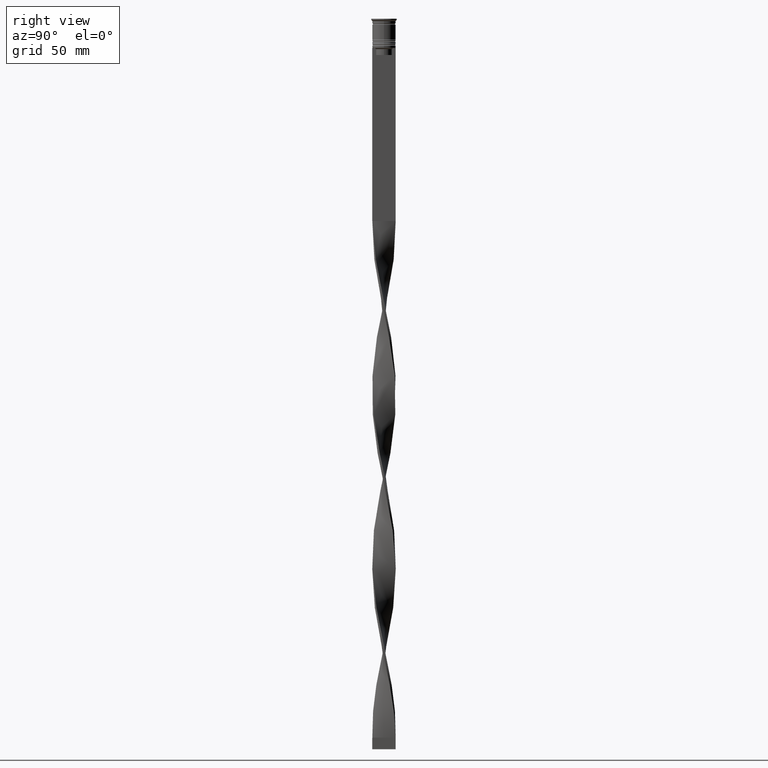
[diagram: clean part render]
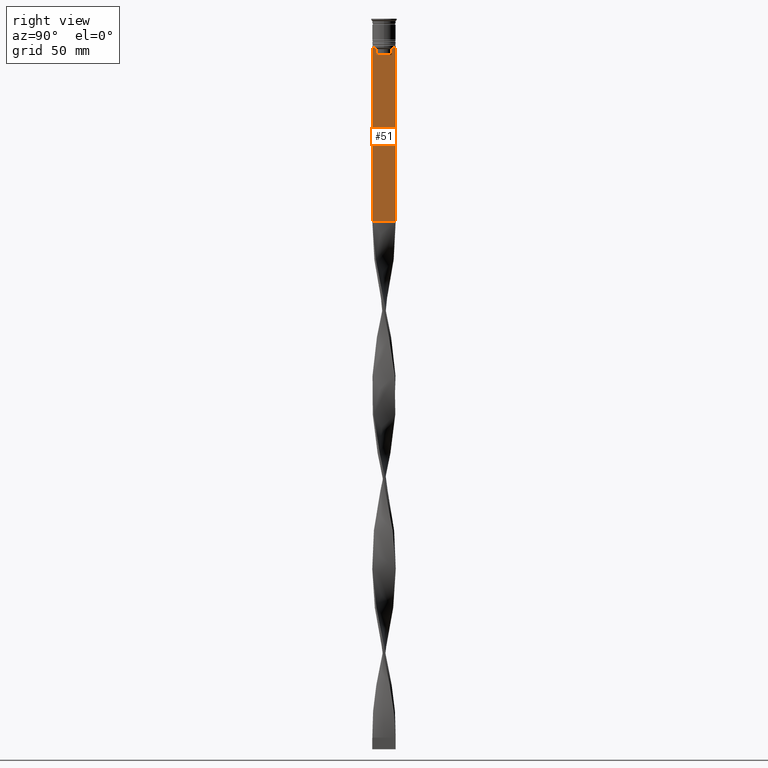
[diagram: same view with one face highlighted and labeled with its STEP entity id]
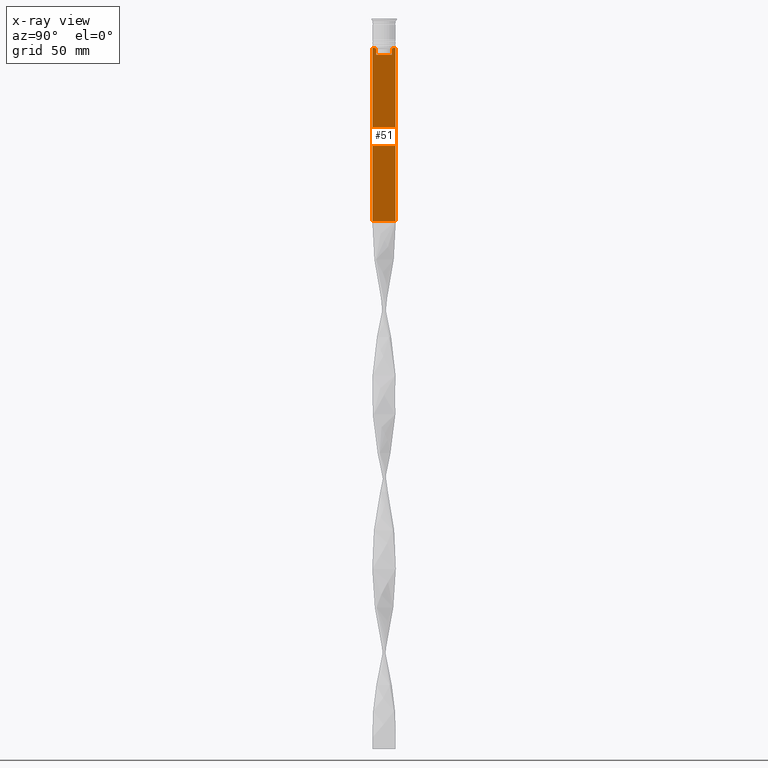
[diagram: x-ray of the same camera — body ghosted, the highlighted face saturated]
A machine part, right view. The second image highlights one B-rep face of the part: STEP entity #51.
The next image is the same camera in x-ray: the body ghosted, the highlighted face saturated — about 0% of this face is hidden behind the body in this view.
In plain terms, the highlighted planar face has unit normal (-1, 0, 0).
Its self-contained STEP definition (entity closure, byte-faithful):
#48 = LINE ( 'NONE', #146, #550 ) ;
#51 = ADVANCED_FACE ( 'NONE', ( #2214 ), #3476, .F. ) ;
#85 = VECTOR ( 'NONE', #3230, 1000.000000000000000 ) ;
#107 = VERTEX_POINT ( 'NONE', #1964 ) ;
#112 = CARTESIAN_POINT ( 'NONE',  ( 0.5000000000000000000, 4.874423042781575788, -12.50000000000000000 ) ) ;
#124 = EDGE_CURVE ( 'NONE', #2200, #4015, #2900, .T. ) ;
#146 = CARTESIAN_POINT ( 'NONE',  ( 0.5000000000000000000, -4.999999999999999112, -12.50000000000000000 ) ) ;
#335 = DIRECTION ( 'NONE',  ( 0.000000000000000000, 1.000000000000000000, 0.000000000000000000 ) ) ;
#349 = CARTESIAN_POINT ( 'NONE',  ( 0.5000000000000000000, 3.363034344160045208, 0.000000000000000000 ) ) ;
#439 = CARTESIAN_POINT ( 'NONE',  ( 0.5000000000000000000, -4.999999999999999112, -12.50000000000000000 ) ) ;
#448 = CARTESIAN_POINT ( 'NONE',  ( 0.5000000000000000000, -4.999999999999999112, -86.50000000000000000 ) ) ;
#455 = LINE ( 'NONE', #1744, #572 ) ;
#464 = ORIENTED_EDGE ( 'NONE', *, *, #1367, .T. ) ;
#538 = CARTESIAN_POINT ( 'NONE',  ( 0.5000000000000000000, 3.399999999999998135, -15.50000000000000000 ) ) ;
#550 = VECTOR ( 'NONE', #2150, 1000.000000000000000 ) ;
#572 = VECTOR ( 'NONE', #2393, 1000.000000000000000 ) ;
#645 = CARTESIAN_POINT ( 'NONE',  ( 0.5000000000000000000, -4.999999999999999112, -2.450124378879110054 ) ) ;
#725 = CARTESIAN_POINT ( 'NONE',  ( 0.5000000000000000000, -4.874423042781575788, -12.50000000000000000 ) ) ;
#765 = VECTOR ( 'NONE', #2928, 1000.000000000000000 ) ;
#889 = B_SPLINE_CURVE_WITH_KNOTS ( 'NONE', 3,
 ( #3931, #3868, #1994, #3284 ),
 .UNSPECIFIED., .F., .F.,
 ( 4, 4 ),
 ( 0.006644825462451552783, 0.007355321358912435097 ),
 .UNSPECIFIED. ) ;
#1022 = CARTESIAN_POINT ( 'NONE',  ( 0.5000000000000000000, -3.363034344160045652, -15.50000000000000000 ) ) ;
#1026 = ORIENTED_EDGE ( 'NONE', *, *, #1677, .T. ) ;
#1051 = EDGE_CURVE ( 'NONE', #3587, #4015, #2599, .T. ) ;
#1112 = DIRECTION ( 'NONE',  ( 0.000000000000000000, 0.000000000000000000, -1.000000000000000000 ) ) ;
#1117 = EDGE_CURVE ( 'NONE', #107, #3587, #3511, .T. ) ;
#1271 = CARTESIAN_POINT ( 'NONE',  ( 0.5000000000000000000, -4.999999999999999112, -12.50000000000000000 ) ) ;
#1321 = LINE ( 'NONE', #349, #765 ) ;
#1367 = EDGE_CURVE ( 'NONE', #3833, #3082, #3095, .T. ) ;
#1430 = LINE ( 'NONE', #439, #3113 ) ;
#1474 = EDGE_CURVE ( 'NONE', #2058, #1970, #889, .T. ) ;
#1536 = EDGE_CURVE ( 'NONE', #2200, #1544, #3616, .T. ) ;
#1544 = VERTEX_POINT ( 'NONE', #112 ) ;
#1577 = DIRECTION ( 'NONE',  ( 0.000000000000000000, 0.000000000000000000, 1.000000000000000000 ) ) ;
#1578 = AXIS2_PLACEMENT_3D ( 'NONE', #645, #1863, #1577 ) ;
#1622 = CARTESIAN_POINT ( 'NONE',  ( 0.5000000000000000000, -3.699658232838647365, -12.66676999593996555 ) ) ;
#1636 = CARTESIAN_POINT ( 'NONE',  ( 0.5000000000000000000, 3.363034344160045208, -13.00000000000000178 ) ) ;
#1677 = EDGE_CURVE ( 'NONE', #3082, #3151, #48, .T. ) ;
#1744 = CARTESIAN_POINT ( 'NONE',  ( 0.5000000000000000000, -3.363034344160045208, 0.000000000000000000 ) ) ;
#1799 = CARTESIAN_POINT ( 'NONE',  ( 0.5000000000000000000, -3.867815921162742754, -12.50000000000000000 ) ) ;
#1811 = ORIENTED_EDGE ( 'NONE', *, *, #1474, .T. ) ;
#1831 = DIRECTION ( 'NONE',  ( 0.000000000000000000, -1.000000000000000000, 0.000000000000000000 ) ) ;
#1863 = DIRECTION ( 'NONE',  ( -1.000000000000000000, 0.000000000000000000, 0.000000000000000000 ) ) ;
#1908 = CARTESIAN_POINT ( 'NONE',  ( 0.5000000000000000000, -3.867815921162742754, -12.50000000000000000 ) ) ;
#1964 = CARTESIAN_POINT ( 'NONE',  ( 0.5000000000000000000, -4.999999999999999112, -12.50000000000000000 ) ) ;
#1970 = VERTEX_POINT ( 'NONE', #1636 ) ;
#1994 = CARTESIAN_POINT ( 'NONE',  ( 0.5000000000000000000, 3.531412678228260216, -12.83345231756357840 ) ) ;
#2058 = VERTEX_POINT ( 'NONE', #2330 ) ;
#2061 = DIRECTION ( 'NONE',  ( 0.000000000000000000, -1.000000000000000000, 0.000000000000000000 ) ) ;
#2140 = LINE ( 'NONE', #538, #3823 ) ;
#2150 = DIRECTION ( 'NONE',  ( 0.000000000000000000, -1.000000000000000000, 0.000000000000000000 ) ) ;
#2200 = VERTEX_POINT ( 'NONE', #3055 ) ;
#2214 = FACE_OUTER_BOUND ( 'NONE', #3607, .T. ) ;
#2216 = CARTESIAN_POINT ( 'NONE',  ( 0.5000000000000000000, -3.531412985305424801, -12.83345201382502765 ) ) ;
#2294 = CARTESIAN_POINT ( 'NONE',  ( 0.5000000000000000000, -4.999999999999999112, -12.50000000000000000 ) ) ;
#2309 = ORIENTED_EDGE ( 'NONE', *, *, #3589, .T. ) ;
#2330 = CARTESIAN_POINT ( 'NONE',  ( 0.5000000000000000000, 3.867815921162742754, -12.50000000000000000 ) ) ;
#2356 = VECTOR ( 'NONE', #335, 1000.000000000000000 ) ;
#2377 = EDGE_CURVE ( 'NONE', #3455, #3564, #2140, .T. ) ;
#2381 = ORIENTED_EDGE ( 'NONE', *, *, #3674, .T. ) ;
#2393 = DIRECTION ( 'NONE',  ( -0.000000000000000000, -0.000000000000000000, 1.000000000000000000 ) ) ;
#2599 = LINE ( 'NONE', #448, #2356 ) ;
#2652 = DIRECTION ( 'NONE',  ( 0.000000000000000000, -1.000000000000000000, 0.000000000000000000 ) ) ;
#2783 = ORIENTED_EDGE ( 'NONE', *, *, #1117, .T. ) ;
#2800 = ORIENTED_EDGE ( 'NONE', *, *, #124, .F. ) ;
#2851 = EDGE_CURVE ( 'NONE', #1544, #2058, #3835, .T. ) ;
#2859 = CARTESIAN_POINT ( 'NONE',  ( 0.5000000000000000000, -4.999999999999999112, -86.50000000000000000 ) ) ;
#2887 = CARTESIAN_POINT ( 'NONE',  ( 0.5000000000000000000, 5.000000000000000888, -86.50000000000000000 ) ) ;
#2900 = LINE ( 'NONE', #3988, #85 ) ;
#2928 = DIRECTION ( 'NONE',  ( 0.000000000000000000, 0.000000000000000000, -1.000000000000000000 ) ) ;
#2958 = VECTOR ( 'NONE', #1112, 1000.000000000000000 ) ;
#3055 = CARTESIAN_POINT ( 'NONE',  ( 0.5000000000000000000, 5.000000000000000888, -12.50000000000000000 ) ) ;
#3082 = VERTEX_POINT ( 'NONE', #1799 ) ;
#3095 = B_SPLINE_CURVE_WITH_KNOTS ( 'NONE', 3,
 ( #3179, #2216, #1622, #1908 ),
 .UNSPECIFIED., .F., .F.,
 ( 4, 4 ),
 ( 0.01632394437298965648, 0.01703543518243618576 ),
 .UNSPECIFIED. ) ;
#3113 = VECTOR ( 'NONE', #2061, 1000.000000000000000 ) ;
#3151 = VERTEX_POINT ( 'NONE', #725 ) ;
#3175 = CARTESIAN_POINT ( 'NONE',  ( 0.5000000000000000000, 3.363034344160045652, -15.50000000000000000 ) ) ;
#3179 = CARTESIAN_POINT ( 'NONE',  ( 0.5000000000000000000, -3.363034344160045208, -13.00000000000000178 ) ) ;
#3225 = ORIENTED_EDGE ( 'NONE', *, *, #1536, .T. ) ;
#3230 = DIRECTION ( 'NONE',  ( 0.000000000000000000, 0.000000000000000000, -1.000000000000000000 ) ) ;
#3284 = CARTESIAN_POINT ( 'NONE',  ( 0.5000000000000000000, 3.363034344160045208, -13.00000000000000178 ) ) ;
#3419 = ORIENTED_EDGE ( 'NONE', *, *, #4055, .T. ) ;
#3455 = VERTEX_POINT ( 'NONE', #3175 ) ;
#3476 = PLANE ( 'NONE',  #1578 ) ;
#3490 = ORIENTED_EDGE ( 'NONE', *, *, #2851, .T. ) ;
#3501 = VECTOR ( 'NONE', #3542, 1000.000000000000000 ) ;
#3511 = LINE ( 'NONE', #3976, #2958 ) ;
#3542 = DIRECTION ( 'NONE',  ( 0.000000000000000000, -1.000000000000000000, 0.000000000000000000 ) ) ;
#3564 = VERTEX_POINT ( 'NONE', #1022 ) ;
#3587 = VERTEX_POINT ( 'NONE', #2859 ) ;
#3589 = EDGE_CURVE ( 'NONE', #3151, #107, #1430, .T. ) ;
#3606 = ORIENTED_EDGE ( 'NONE', *, *, #1051, .T. ) ;
#3607 = EDGE_LOOP ( 'NONE', ( #3490, #1811, #3419, #3982, #2381, #464, #1026, #2309, #2783, #3606, #2800, #3225 ) ) ;
#3616 = LINE ( 'NONE', #2294, #3887 ) ;
#3674 = EDGE_CURVE ( 'NONE', #3564, #3833, #455, .T. ) ;
#3823 = VECTOR ( 'NONE', #1831, 1000.000000000000000 ) ;
#3833 = VERTEX_POINT ( 'NONE', #4048 ) ;
#3835 = LINE ( 'NONE', #1271, #3501 ) ;
#3868 = CARTESIAN_POINT ( 'NONE',  ( 0.5000000000000000000, 3.699657965831574913, -12.66677026074361301 ) ) ;
#3887 = VECTOR ( 'NONE', #2652, 1000.000000000000000 ) ;
#3931 = CARTESIAN_POINT ( 'NONE',  ( 0.5000000000000000000, 3.867815921162742754, -12.50000000000000000 ) ) ;
#3976 = CARTESIAN_POINT ( 'NONE',  ( 0.5000000000000000000, -4.999999999999999112, -2.450124378879110054 ) ) ;
#3982 = ORIENTED_EDGE ( 'NONE', *, *, #2377, .T. ) ;
#3988 = CARTESIAN_POINT ( 'NONE',  ( 0.5000000000000000000, 5.000000000000000888, -2.450124378879110054 ) ) ;
#4015 = VERTEX_POINT ( 'NONE', #2887 ) ;
#4048 = CARTESIAN_POINT ( 'NONE',  ( 0.5000000000000000000, -3.363034344160045208, -13.00000000000000178 ) ) ;
#4055 = EDGE_CURVE ( 'NONE', #1970, #3455, #1321, .T. ) ;